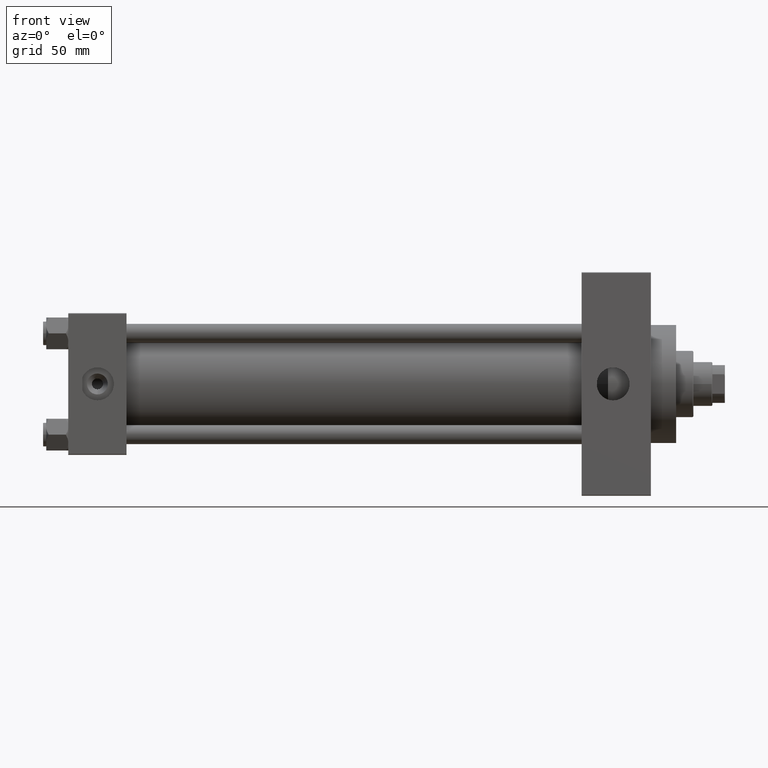
[diagram: clean part render]
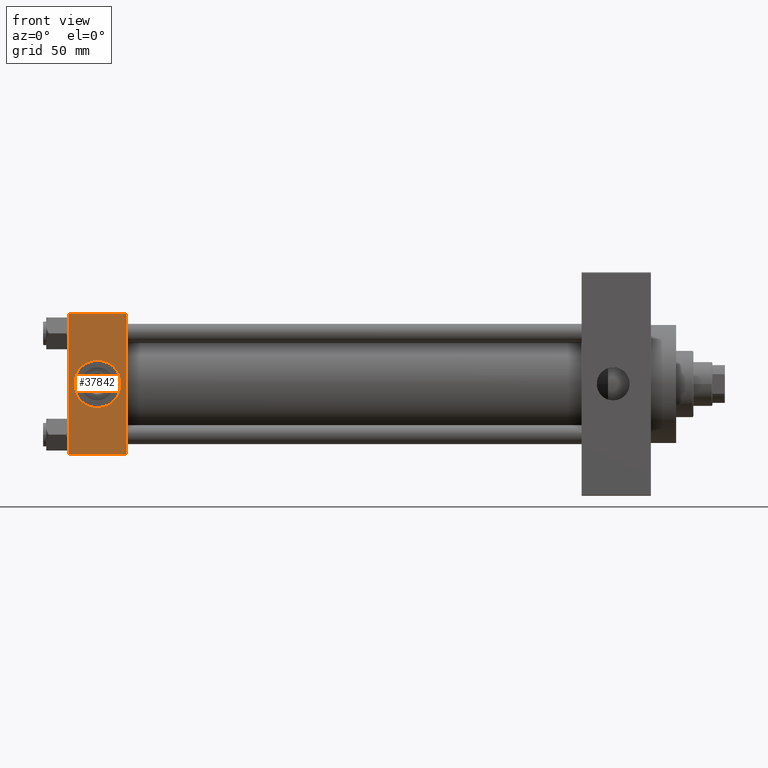
[diagram: same view with one face highlighted and labeled with its STEP entity id]
A machine part, front view. The second image highlights one B-rep face of the part: STEP entity #37842.
In plain terms, the highlighted planar face has unit normal (0, 1, 0).
Its self-contained STEP definition (entity closure, byte-faithful):
#169 = CARTESIAN_POINT ( 'NONE',  ( 37.00000000000000000, -45.00000000000000711, 44.49999999999997158 ) ) ;
#286 = FACE_OUTER_BOUND ( 'NONE', #22610, .T. ) ;
#660 = CARTESIAN_POINT ( 'NONE',  ( 18.50000000000000000, -45.00000000000000000, -15.00000000000000533 ) ) ;
#1132 = CARTESIAN_POINT ( 'NONE',  ( 37.00000000000000000, -45.00000000000000000, -44.49999999999998579 ) ) ;
#1279 = AXIS2_PLACEMENT_3D ( 'NONE', #22136, #26438, #29795 ) ;
#1974 = EDGE_CURVE ( 'NONE', #9246, #21414, #26408, .T. ) ;
#2428 = CARTESIAN_POINT ( 'NONE',  ( 0.000000000000000000, -45.00000000000000000, -44.49999999999995737 ) ) ;
#3174 = ORIENTED_EDGE ( 'NONE', *, *, #43836, .F. ) ;
#3968 = CIRCLE ( 'NONE', #28460, 15.00000000000000178 ) ;
#3980 = VERTEX_POINT ( 'NONE', #18596 ) ;
#4520 = CARTESIAN_POINT ( 'NONE',  ( 37.00000000000000000, -45.00000000000000711, 45.00000000000000000 ) ) ;
#8333 = DIRECTION ( 'NONE',  ( 1.000000000000000000, 0.000000000000000000, 0.000000000000000000 ) ) ;
#8568 = ORIENTED_EDGE ( 'NONE', *, *, #1974, .T. ) ;
#8806 = LINE ( 'NONE', #1132, #42656 ) ;
#9117 = FACE_BOUND ( 'NONE', #36784, .T. ) ;
#9246 = VERTEX_POINT ( 'NONE', #16410 ) ;
#9562 = CARTESIAN_POINT ( 'NONE',  ( 18.50000000000000000, -45.00000000000000000, -3.469446951953614978E-15 ) ) ;
#10298 = VECTOR ( 'NONE', #23309, 1000.000000000000000 ) ;
#10667 = CIRCLE ( 'NONE', #22936, 15.00000000000000178 ) ;
#14726 = CARTESIAN_POINT ( 'NONE',  ( 18.50000000000000000, -45.00000000000000000, -3.469446951953614978E-15 ) ) ;
#16162 = ORIENTED_EDGE ( 'NONE', *, *, #19401, .F. ) ;
#16410 = CARTESIAN_POINT ( 'NONE',  ( 0.000000000000000000, -45.00000000000000711, 44.49999999999997158 ) ) ;
#18596 = CARTESIAN_POINT ( 'NONE',  ( 37.00000000000000000, -45.00000000000000711, 44.49999999999997158 ) ) ;
#19401 = EDGE_CURVE ( 'NONE', #43284, #40252, #3968, .T. ) ;
#21297 = CARTESIAN_POINT ( 'NONE',  ( 37.00000000000000000, -45.00000000000000000, -44.49999999999995737 ) ) ;
#21414 = VERTEX_POINT ( 'NONE', #2428 ) ;
#22136 = CARTESIAN_POINT ( 'NONE',  ( 37.00000000000000000, -45.00000000000000711, 45.00000000000000000 ) ) ;
#22377 = EDGE_CURVE ( 'NONE', #3980, #36581, #34481, .T. ) ;
#22610 = EDGE_LOOP ( 'NONE', ( #8568, #46340, #40362, #30623 ) ) ;
#22936 = AXIS2_PLACEMENT_3D ( 'NONE', #9562, #24198, #38802 ) ;
#23309 = DIRECTION ( 'NONE',  ( 0.000000000000000000, 7.709882115452476934E-17, -1.000000000000000000 ) ) ;
#24198 = DIRECTION ( 'NONE',  ( 0.000000000000000000, -1.000000000000000000, -8.673617379884036705E-17 ) ) ;
#25602 = DIRECTION ( 'NONE',  ( -1.000000000000000000, 0.000000000000000000, 0.000000000000000000 ) ) ;
#26142 = VECTOR ( 'NONE', #27301, 1000.000000000000000 ) ;
#26408 = LINE ( 'NONE', #41027, #10298 ) ;
#26438 = DIRECTION ( 'NONE',  ( -0.000000000000000000, 1.000000000000000000, 7.709882115452478166E-17 ) ) ;
#27301 = DIRECTION ( 'NONE',  ( 0.000000000000000000, 7.709882115452476934E-17, -1.000000000000000000 ) ) ;
#28460 = AXIS2_PLACEMENT_3D ( 'NONE', #14726, #29347, #43955 ) ;
#29347 = DIRECTION ( 'NONE',  ( 0.000000000000000000, -1.000000000000000000, -8.673617379884036705E-17 ) ) ;
#29677 = LINE ( 'NONE', #169, #43412 ) ;
#29795 = DIRECTION ( 'NONE',  ( 0.000000000000000000, -7.709882115452478166E-17, 1.000000000000000000 ) ) ;
#30623 = ORIENTED_EDGE ( 'NONE', *, *, #40168, .T. ) ;
#32680 = CARTESIAN_POINT ( 'NONE',  ( 18.50000000000000355, -45.00000000000000000, 14.99999999999999822 ) ) ;
#34481 = LINE ( 'NONE', #4520, #26142 ) ;
#36581 = VERTEX_POINT ( 'NONE', #21297 ) ;
#36784 = EDGE_LOOP ( 'NONE', ( #3174, #16162 ) ) ;
#37842 = ADVANCED_FACE ( 'NONE', ( #9117, #286 ), #45773, .F. ) ;
#38802 = DIRECTION ( 'NONE',  ( 0.000000000000000000, 0.000000000000000000, -1.000000000000000000 ) ) ;
#39410 = EDGE_CURVE ( 'NONE', #21414, #36581, #8806, .T. ) ;
#40168 = EDGE_CURVE ( 'NONE', #3980, #9246, #29677, .T. ) ;
#40252 = VERTEX_POINT ( 'NONE', #660 ) ;
#40362 = ORIENTED_EDGE ( 'NONE', *, *, #22377, .F. ) ;
#41027 = CARTESIAN_POINT ( 'NONE',  ( 0.000000000000000000, -45.00000000000000711, 45.00000000000000000 ) ) ;
#42656 = VECTOR ( 'NONE', #8333, 1000.000000000000000 ) ;
#43284 = VERTEX_POINT ( 'NONE', #32680 ) ;
#43412 = VECTOR ( 'NONE', #25602, 1000.000000000000000 ) ;
#43836 = EDGE_CURVE ( 'NONE', #40252, #43284, #10667, .T. ) ;
#43955 = DIRECTION ( 'NONE',  ( 0.000000000000000000, 0.000000000000000000, -1.000000000000000000 ) ) ;
#45773 = PLANE ( 'NONE',  #1279 ) ;
#46340 = ORIENTED_EDGE ( 'NONE', *, *, #39410, .T. ) ;